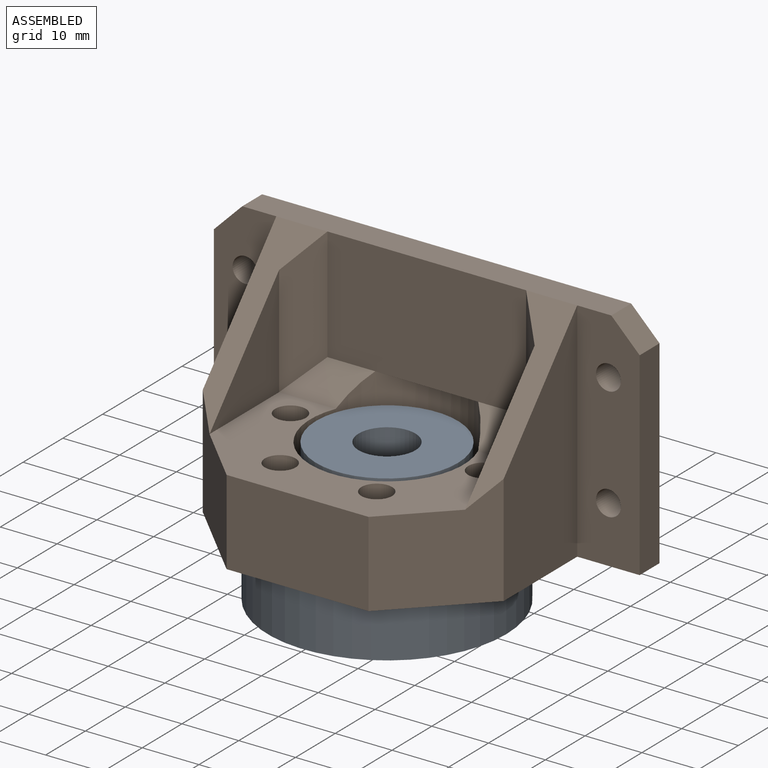
[diagram: assembled view]
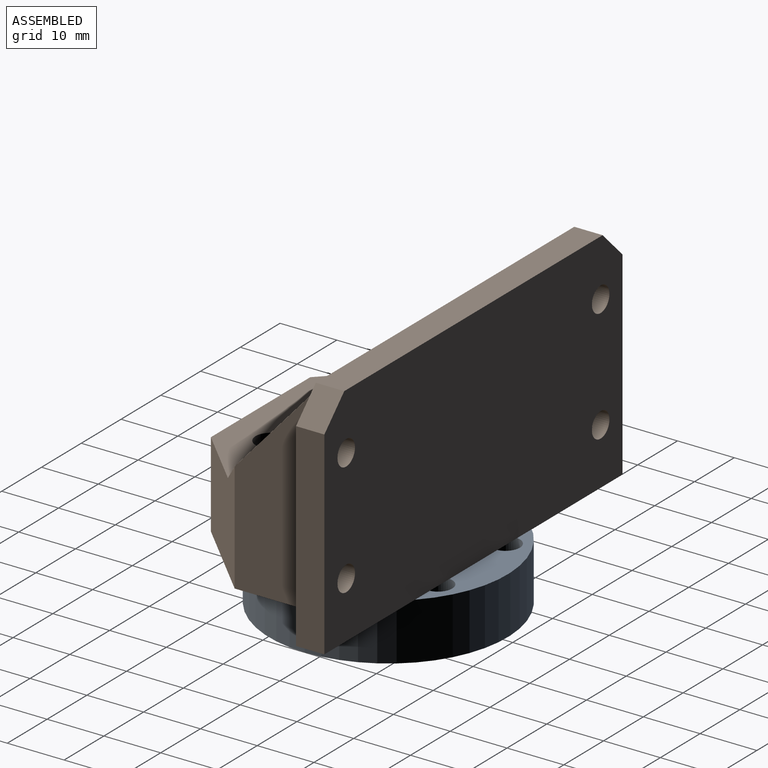
[diagram: assembled view, second angle]
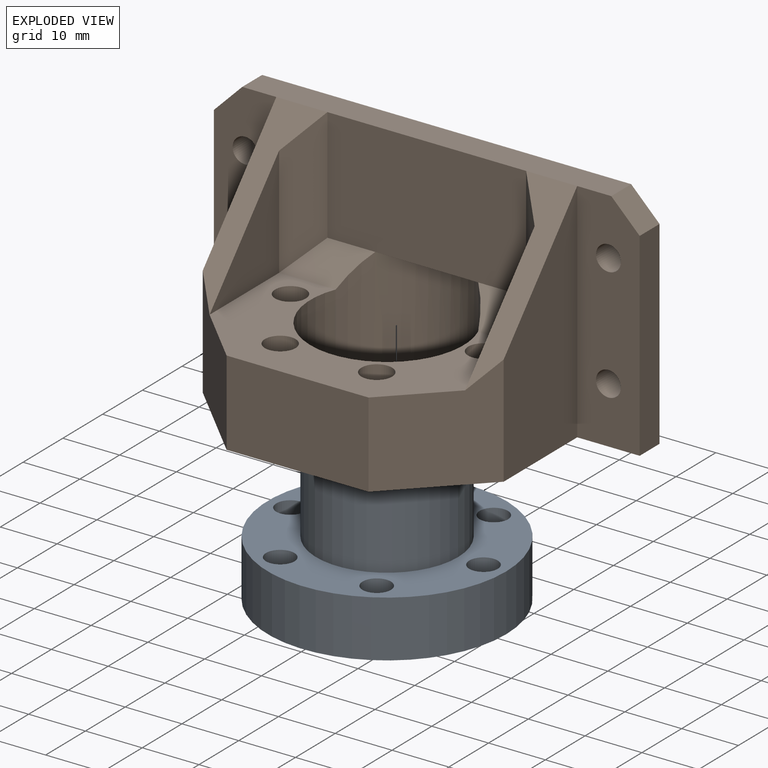
[diagram: exploded view]
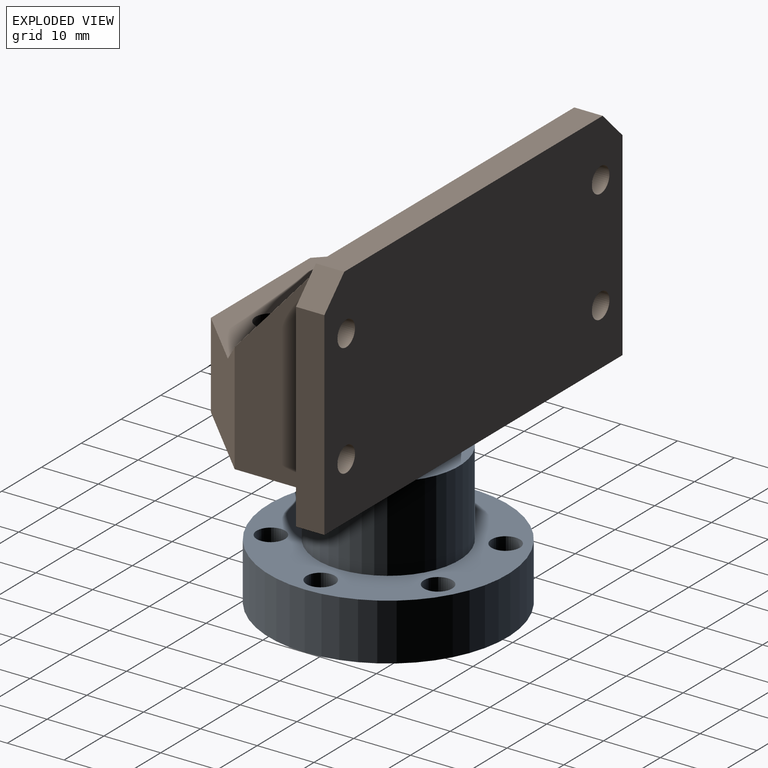
[diagram: exploded view, second angle]
ASSEMBLY  parts=2 mates=2
PART A: 12 faces, bbox 42x42x25 mm
  f0: cylinder r=21mm len=42mm, axis (0,0,-1), area 1319.5mm2, adj f1,f2
  f1: plane 42x42mm, normal (0,0,1), area 776.8mm2, adj f0,f3,f6,f7,f8,f9,f10,f11
  f2: plane 42x42mm, normal (0,0,-1), area 1189.1mm2, adj f0,f5,f6,f7,f8,f9,f10,f11
  f3: cylinder r=12.5mm len=25mm, axis (0,0,-1), area 1178.1mm2, adj f1,f4
  f4: plane 25x25mm, normal (0,0,1), area 412.3mm2, adj f3,f5
  f5: cylinder r=5mm len=25mm, axis (0,0,1), area 785.4mm2, adj f2,f4
  f6: cylinder r=2.5mm len=10mm, axis (0,0,-1), area 157.1mm2, adj f1,f2
  f7: cylinder r=2.5mm len=10mm, axis (0,0,-1), area 157.1mm2, adj f1,f2
  f8: cylinder r=2.5mm len=10mm, axis (0,0,-1), area 157.1mm2, adj f1,f2
  f9: cylinder r=2.5mm len=10mm, axis (0,0,-1), area 157.1mm2, adj f1,f2
  f10: cylinder r=2.5mm len=10mm, axis (0,0,-1), area 157.1mm2, adj f1,f2
  f11: cylinder r=2.5mm len=10mm, axis (0,0,-1), area 157.1mm2, adj f1,f2
PART B: 34 faces, bbox 75x37.5x40 mm
  f0: plane 35x20mm, normal (0,-1,0), area 700mm2, adj f9,f13,f18,f19,f32,f33
  f1: plane 40x11mm, normal (0,-1,0), area 397.1mm2, adj f5,f8,f9,f10,f24,f28,f29
  f2: plane 45x27.5mm, normal (0,0,1), area 627.8mm2, adj f3,f12,f14,f15,f16,f17,f18,f19
  f3: plane 25x15mm, normal (0,-1,0), area 375mm2, adj f2,f5,f20,f21
  f4: plane 75x40mm, normal (0,1,0), area 2914.2mm2, adj f5,f6,f8,f9,f10,f11,f28,f29
  f5: plane 75x37.5mm, normal (0,0,-1), area 1237.3mm2, adj f1,f3,f4,f6,f7,f8,f12,f14
  f6: plane 35x5mm, normal (-1,0,0), area 175mm2, adj f4,f5,f7,f11
  f7: plane 40x11mm, normal (0,-1,0), area 397.1mm2, adj f5,f6,f9,f11,f27,f30,f31
  f8: plane 35x5mm, normal (1,0,0), area 175mm2, adj f1,f4,f5,f10
  f9: plane 65x5mm, normal (0,0,1), area 325mm2, adj f0,f1,f4,f7,f10,f11,f23,f26
  f10: plane 5x5mm, normal (0.71,0,0.71), area 35.4mm2, adj f1,f4,f8,f9
  f11: plane 5x5mm, normal (-0.71,0,0.71), area 35.4mm2, adj f4,f6,f7,f9
  f12: cylinder r=13.5mm len=27mm, axis (0,0,-1), area 1404.1mm2, adj f2,f5,f13,f18,f19
  f13: plane 18.14x3.5mm, normal (0,0,-1), area 43.6mm2, adj f0,f12
  f14: cylinder r=2.7mm len=15mm, axis (0,0,-1), area 254.5mm2, adj f2,f5
  f15: cylinder r=2.7mm len=15mm, axis (0,0,-1), area 254.5mm2, adj f2,f5
  f16: cylinder r=2.7mm len=15mm, axis (0,0,-1), area 254.5mm2, adj f2,f5
  f17: cylinder r=2.7mm len=15mm, axis (0,0,-1), area 254.5mm2, adj f2,f5
  f18: plane 13.43x5mm, normal (0,-0.71,0.71), area 63mm2, adj f0,f2,f12,f32
  f19: plane 13.43x5mm, normal (0,-0.71,0.71), area 63mm2, adj f0,f2,f12,f33
  f20: plane 19.44x14mm, normal (-0.71,-0.71,0), area 309.6mm2, adj f2,f3,f5,f26,f27
  f21: plane 19.44x14mm, normal (0.71,-0.71,0), area 309.6mm2, adj f2,f3,f5,f23,f24
  f22: plane 19.44x17.5mm, normal (-1,0,0), area 170.1mm2, adj f2,f23,f33
  f23: plane 25x22.5mm, normal (0,-0.74,0.67), area 141.3mm2, adj f9,f21,f22,f24,f33
  f24: plane 40x18.5mm, normal (1,0,0), area 549.9mm2, adj f1,f5,f21,f23
  f25: plane 19.44x17.5mm, normal (1,0,0), area 170.1mm2, adj f2,f26,f32
  f26: plane 25x22.5mm, normal (0,-0.74,0.67), area 141.3mm2, adj f9,f20,f25,f27,f32
  f27: plane 40x18.5mm, normal (-1,0,0), area 549.9mm2, adj f5,f7,f20,f26
  f28: cylinder r=2.2mm len=5mm, axis (0,-1,0), area 69.1mm2, adj f1,f4
  f29: cylinder r=2.2mm len=5mm, axis (0,-1,0), area 69.1mm2, adj f1,f4
  f30: cylinder r=2.2mm len=5mm, axis (0,-1,0), area 69.1mm2, adj f4,f7
  f31: cylinder r=2.2mm len=5mm, axis (0,-1,0), area 69.1mm2, adj f4,f7
  f32: plane 25x5mm, normal (0.71,-0.71,0), area 139.5mm2, adj f0,f18,f25,f26
  f33: plane 25x5mm, normal (-0.71,-0.71,0), area 139.5mm2, adj f0,f19,f22,f23
PLACE A t=(11.64,39.24,-2.12)mm
PLACE B t=(11.64,39.24,7.88)mm
MATE planar A.f0 <-> B.f5  axis (0,0,1) through (11.64,39.24,7.88)mm
MATE cylindrical A.f0 <-> B.f12  axis (0,0,-1) through (11.64,39.24,15.38)mm
